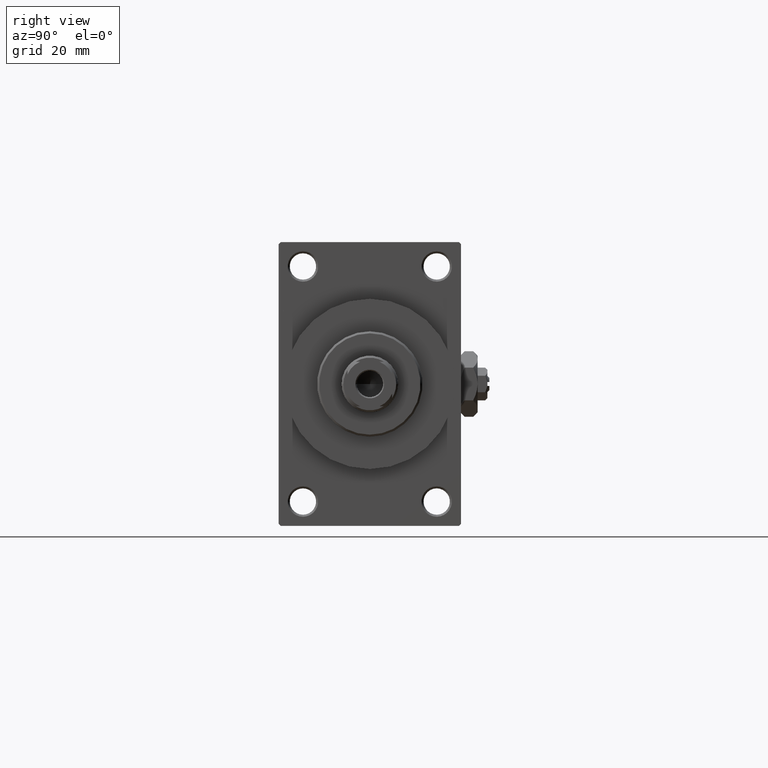
[diagram: clean part render]
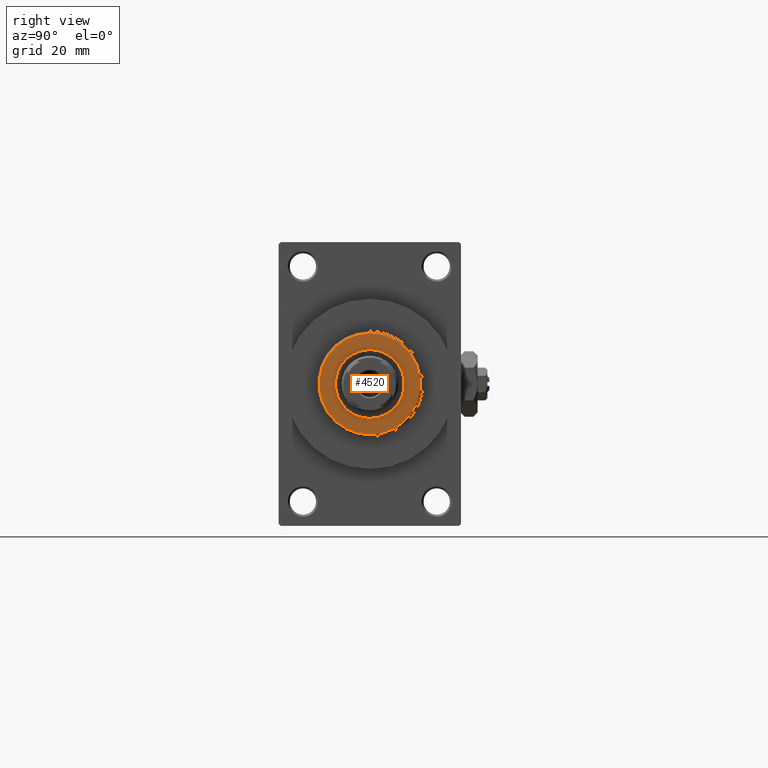
[diagram: same view with one face highlighted and labeled with its STEP entity id]
A machine part, right view. The second image highlights one B-rep face of the part: STEP entity #4520.
In plain terms, the highlighted planar face has unit normal (1, -0, -0).
Its self-contained STEP definition (entity closure, byte-faithful):
#3154 = CIRCLE ( 'NONE', #42012, 12.49999999999998401 ) ;
#4327 = ORIENTED_EDGE ( 'NONE', *, *, #13765, .T. ) ;
#4520 = ADVANCED_FACE ( 'NONE', ( #23366, #45985 ), #19179, .T. ) ;
#5371 = CARTESIAN_POINT ( 'NONE',  ( 0.000000000000000000, 0.000000000000000000, 51.25999999999999801 ) ) ;
#5637 = DIRECTION ( 'NONE',  ( 1.000000000000000000, 0.000000000000000000, 0.000000000000000000 ) ) ;
#5741 = VERTEX_POINT ( 'NONE', #32006 ) ;
#7212 = CARTESIAN_POINT ( 'NONE',  ( 12.49999999999998401, 1.561424668912874322E-15, 51.25999999999999801 ) ) ;
#10102 = VERTEX_POINT ( 'NONE', #19321 ) ;
#10422 = ORIENTED_EDGE ( 'NONE', *, *, #39490, .F. ) ;
#11046 = EDGE_LOOP ( 'NONE', ( #10422, #12394 ) ) ;
#12394 = ORIENTED_EDGE ( 'NONE', *, *, #48030, .F. ) ;
#12732 = AXIS2_PLACEMENT_3D ( 'NONE', #47606, #44126, #5637 ) ;
#13765 = EDGE_CURVE ( 'NONE', #17557, #35173, #3154, .T. ) ;
#14335 = DIRECTION ( 'NONE',  ( 0.000000000000000000, 0.000000000000000000, 1.000000000000000000 ) ) ;
#15245 = CIRCLE ( 'NONE', #43014, 8.500000000000000000 ) ;
#17557 = VERTEX_POINT ( 'NONE', #7212 ) ;
#18857 = DIRECTION ( 'NONE',  ( 1.000000000000000000, 0.000000000000000000, 0.000000000000000000 ) ) ;
#19179 = PLANE ( 'NONE',  #21967 ) ;
#19321 = CARTESIAN_POINT ( 'NONE',  ( 8.500000000000000000, 0.000000000000000000, 51.25999999999999801 ) ) ;
#19651 = CARTESIAN_POINT ( 'NONE',  ( 0.000000000000000000, 0.000000000000000000, 51.25999999999999801 ) ) ;
#21967 = AXIS2_PLACEMENT_3D ( 'NONE', #19651, #45500, #27326 ) ;
#23366 = FACE_BOUND ( 'NONE', #11046, .T. ) ;
#24407 = CIRCLE ( 'NONE', #39499, 12.49999999999998401 ) ;
#26488 = CARTESIAN_POINT ( 'NONE',  ( 0.000000000000000000, 0.000000000000000000, 51.25999999999999801 ) ) ;
#27326 = DIRECTION ( 'NONE',  ( 1.000000000000000000, 0.000000000000000000, -0.000000000000000000 ) ) ;
#29351 = CARTESIAN_POINT ( 'NONE',  ( -12.49999999999998401, 0.000000000000000000, 51.25999999999999801 ) ) ;
#29366 = EDGE_CURVE ( 'NONE', #35173, #17557, #24407, .T. ) ;
#30269 = CARTESIAN_POINT ( 'NONE',  ( 0.000000000000000000, 0.000000000000000000, 51.25999999999999801 ) ) ;
#32006 = CARTESIAN_POINT ( 'NONE',  ( -8.500000000000000000, 1.040949779275250140E-15, 51.25999999999999801 ) ) ;
#32830 = DIRECTION ( 'NONE',  ( 0.000000000000000000, 0.000000000000000000, 1.000000000000000000 ) ) ;
#35173 = VERTEX_POINT ( 'NONE', #29351 ) ;
#37935 = DIRECTION ( 'NONE',  ( 1.000000000000000000, 0.000000000000000000, 0.000000000000000000 ) ) ;
#39162 = DIRECTION ( 'NONE',  ( 0.000000000000000000, 0.000000000000000000, 1.000000000000000000 ) ) ;
#39401 = DIRECTION ( 'NONE',  ( 1.000000000000000000, 0.000000000000000000, 0.000000000000000000 ) ) ;
#39490 = EDGE_CURVE ( 'NONE', #10102, #5741, #43696, .T. ) ;
#39499 = AXIS2_PLACEMENT_3D ( 'NONE', #26488, #14335, #37935 ) ;
#42012 = AXIS2_PLACEMENT_3D ( 'NONE', #30269, #32830, #18857 ) ;
#43014 = AXIS2_PLACEMENT_3D ( 'NONE', #5371, #39162, #39401 ) ;
#43696 = CIRCLE ( 'NONE', #12732, 8.500000000000000000 ) ;
#44126 = DIRECTION ( 'NONE',  ( 0.000000000000000000, 0.000000000000000000, 1.000000000000000000 ) ) ;
#44451 = ORIENTED_EDGE ( 'NONE', *, *, #29366, .T. ) ;
#45500 = DIRECTION ( 'NONE',  ( 0.000000000000000000, 0.000000000000000000, 1.000000000000000000 ) ) ;
#45985 = FACE_OUTER_BOUND ( 'NONE', #48674, .T. ) ;
#47606 = CARTESIAN_POINT ( 'NONE',  ( 0.000000000000000000, 0.000000000000000000, 51.25999999999999801 ) ) ;
#48030 = EDGE_CURVE ( 'NONE', #5741, #10102, #15245, .T. ) ;
#48674 = EDGE_LOOP ( 'NONE', ( #44451, #4327 ) ) ;